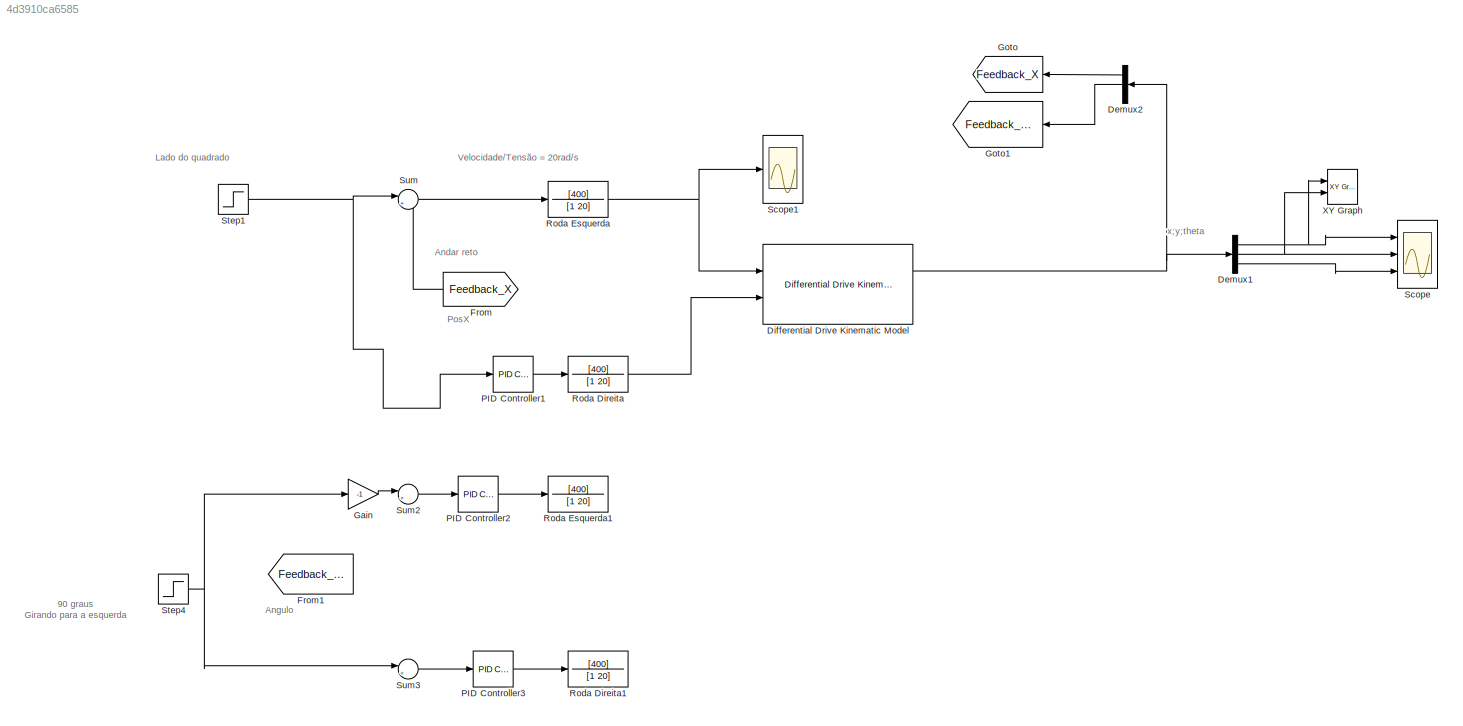
MODEL slx_4d3910ca6585
KIND model
CONFIG AbsTol = auto
CONFIG EnableMultiTasking = off
CONFIG FixedStep = auto
CONFIG MaxStep = auto
CONFIG MinStep = auto
CONFIG RelTol = 1e-3
CONFIG SampleTimeConstraint = Unconstrained
CONFIG Solver = VariableStepAuto
CONFIG SolverName = VariableStepAuto
CONFIG StartTime = 0.0
CONFIG StopTime = 6
WORKSPACE source: mxarray member
WORKSPACE Initial_State = [0 0 0]
BLOCK [Demux] Demux1
  Outputs = 3
  Ports = [1, 3]
BLOCK [Demux] Demux2
  Outputs = 3
  Ports = [1, 3]
BLOCK [Reference] Differential Drive Kinematic Model  REF=robotmobilelib/Differential Drive Kinematic Model
  Ports = [2, 2]
  SourceBlock = robotmobilelib/Differential Drive Kinematic Model
  SourceProductBaseCode = RO
  SourceType = Differential Drive Kinematic Model
BLOCK [From] From
  GotoTag = Feedback_X
BLOCK [From] From1
  GotoTag = Feedback_theta
BLOCK [Gain] Gain
  Gain = -1
BLOCK [Goto] Goto
  GotoTag = Feedback_X
BLOCK [Goto] Goto1
  GotoTag = Feedback_theta
BLOCK [Reference] PID Controller1  REF=simulink/Continuous/PID Controller
  Ports = [1, 1]
  SourceBlock = simulink/Continuous/PID Controller
  SourceProductBaseCode = SL
  SourceType = PID 1dof
BLOCK [Reference] PID Controller2  REF=simulink/Continuous/PID Controller
  Ports = [1, 1]
  SourceBlock = simulink/Continuous/PID Controller
  SourceProductBaseCode = SL
  SourceType = PID 1dof
BLOCK [Reference] PID Controller3  REF=simulink/Continuous/PID Controller
  Ports = [1, 1]
  SourceBlock = simulink/Continuous/PID Controller
  SourceProductBaseCode = SL
  SourceType = PID 1dof
BLOCK [TransferFcn] Roda Direita
  Denominator = [1 20]
  Numerator = [400]
BLOCK [TransferFcn] Roda Direita1
  Denominator = [1 20]
  Numerator = [400]
BLOCK [TransferFcn] Roda Esquerda
  Denominator = [1 20]
  Numerator = [400]
BLOCK [TransferFcn] Roda Esquerda1
  Denominator = [1 20]
  Numerator = [400]
BLOCK [Scope] Scope
  Floating = off
  NumInputPorts = 3
  Ports = [3]
  ScopeSpecificationString = Simulink.scopes.TimeScopeBlockCfg('CurrentConfiguration', extmgr.ConfigurationSet(extmgr.Configuration('Core','General UI',true),extmgr.Configuration('Core','Source UI',true),extmgr.Configuration('Sources','WiredSimulink',true),extmgr.Configuration('Visuals','Time Domain',true,'SerializedDisplays',{struct('MinYLimReal','-4.9054','MaxYLimReal','112.98268','YLabelReal','','MinYLimMag','0.00000','Max...<+1744ch>
BLOCK [Scope] Scope1
  Floating = off
  NumInputPorts = 1
  Ports = [1]
  ScopeSpecificationString = Simulink.scopes.TimeScopeBlockCfg('CurrentConfiguration', extmgr.ConfigurationSet(extmgr.Configuration('Core','General UI',true),extmgr.Configuration('Core','Source UI',true),extmgr.Configuration('Sources','WiredSimulink',true,'DataLoggingVariableName','ScopeData1'),extmgr.Configuration('Visuals','Time Domain',true,'SerializedDisplays',{struct('MinYLimReal','-4.9054','MaxYLimReal','112.98268','YLa...<+1733ch>
BLOCK [Step] Step1
  SampleTime = 0
BLOCK [Step] Step4
  After = 90
  SampleTime = 0
BLOCK [Sum] Sum
  Inputs = |+-
  Ports = [2, 1]
BLOCK [Sum] Sum2
  Inputs = |+-
  Ports = [2, 1]
BLOCK [Sum] Sum3
  Inputs = |+-
  Ports = [2, 1]
BLOCK [Reference] XY Graph  REF=simulink/Sinks/XY Graph
  Ports = [2]
  SourceBlock = simulink/Sinks/XY Graph
  SourceProductBaseCode = SL
  SourceType = XY scope.
ANNOTATION (root): 90 graus Girando para a esquerda
ANNOTATION (root): Andar reto
ANNOTATION (root): Angulo
ANNOTATION (root): Lado do quadrado
ANNOTATION (root): PosX
ANNOTATION (root): Velocidade/Tensão = 20rad/s
ANNOTATION (root): x;y;theta
NET Demux1:1 -> Scope:1, XY Graph:1
NET Demux1:2 -> Scope:2, XY Graph:2
LINE Demux1:3 -> Scope:3
LINE Demux2:1 -> Goto:1
LINE Demux2:2 -> Goto1:1
NET Differential Drive Kinematic Model:1 -> Demux1:1, Demux2:1
LINE From:1 -> Sum:2
LINE Gain:1 -> Sum2:1
LINE PID Controller1:1 -> Roda Direita:1
LINE PID Controller2:1 -> Roda Esquerda1:1
LINE PID Controller3:1 -> Roda Direita1:1
LINE Roda Direita:1 -> Differential Drive Kinematic Model:2
NET Roda Esquerda:1 -> Differential Drive Kinematic Model:1, Scope1:1
NET Step1:1 -> PID Controller1:1, Sum:1
NET Step4:1 -> Gain:1, Sum3:1
LINE Sum2:1 -> PID Controller2:1
LINE Sum3:1 -> PID Controller3:1
LINE Sum:1 -> Roda Esquerda:1
note: NET lines group one-source signal fan-out (src -> all destinations, sorted); 1:1 wires keep LINE
